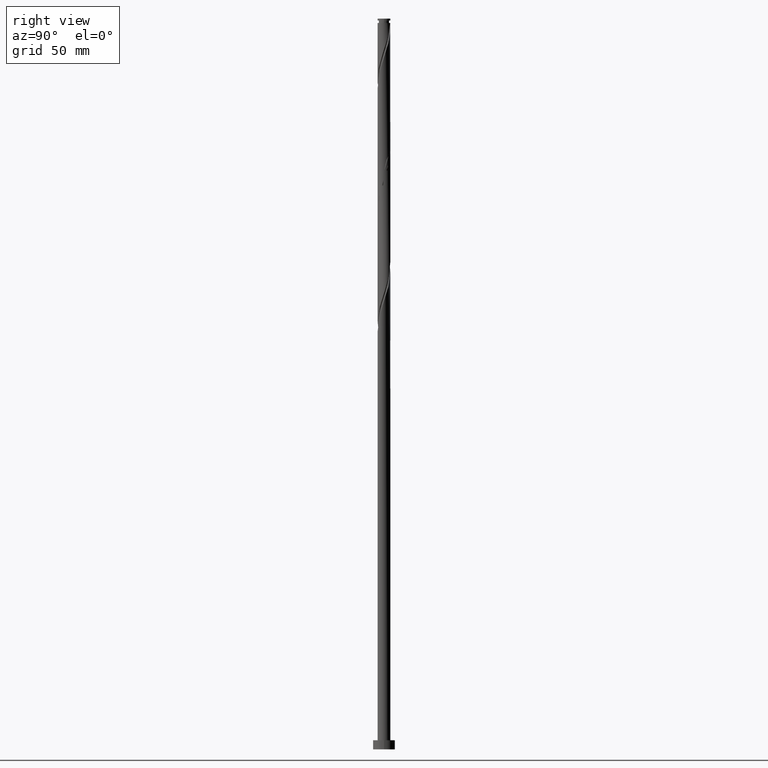
[diagram: clean part render]
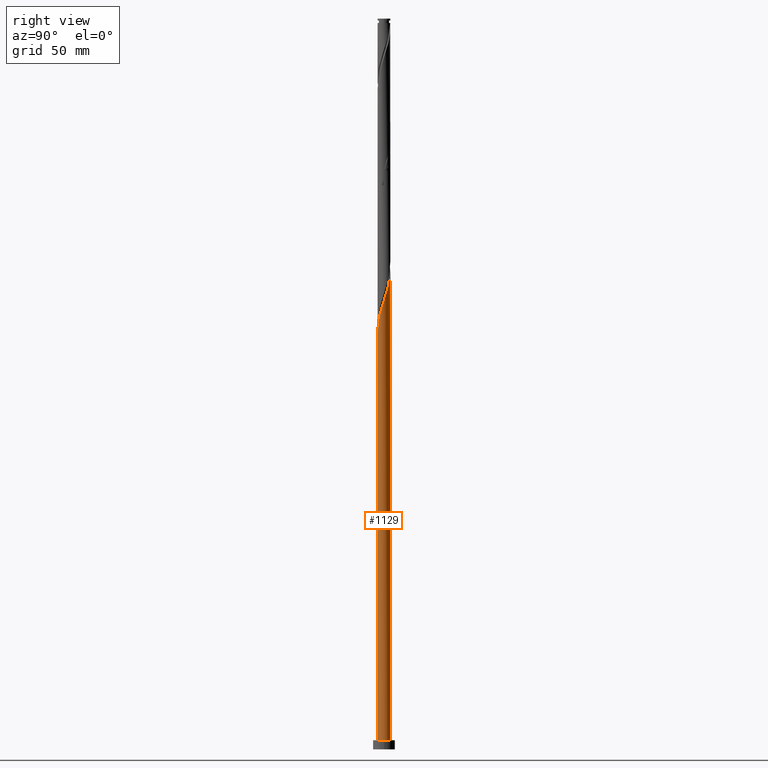
[diagram: same view with one face highlighted and labeled with its STEP entity id]
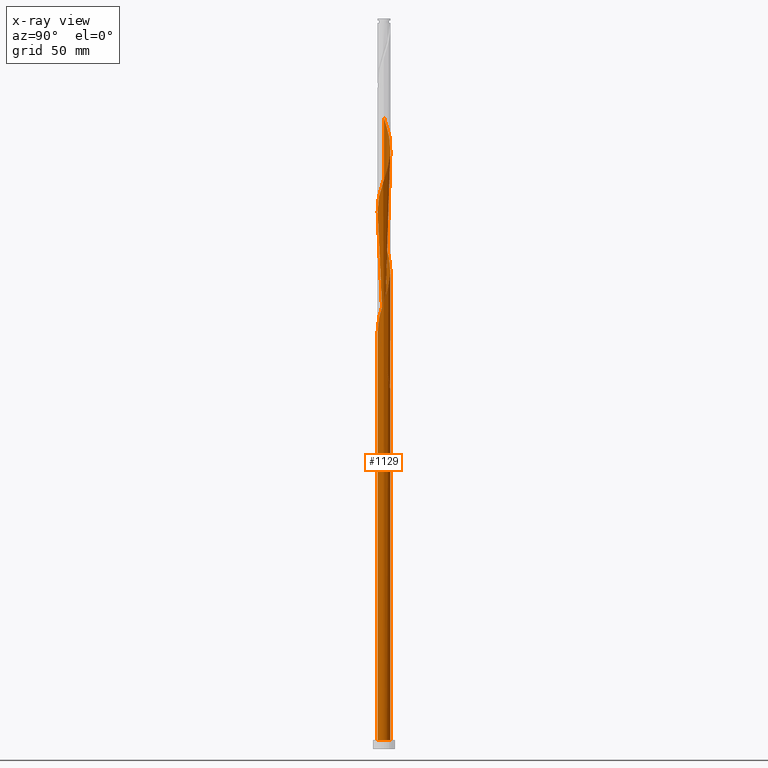
[diagram: x-ray of the same camera — body ghosted, the highlighted face saturated]
A machine part, right view. The second image highlights one B-rep face of the part: STEP entity #1129.
The next image is the same camera in x-ray: the body ghosted, the highlighted face saturated — about 0% of this face is hidden behind the body in this view.
In plain terms, the highlighted cylindrical surface (bore or boss wall) has radius 3.5 mm, axis along (-0, -0, -1).
Its self-contained STEP definition (entity closure, byte-faithful):
#3 = CARTESIAN_POINT ( 'NONE',  ( 2.865871971183461930, 2.042572489069149011, 318.7067946321412819 ) ) ;
#58 = CARTESIAN_POINT ( 'NONE',  ( 0.000000000000000000, 0.000000000000000000, 197.5956835210304519 ) ) ;
#61 = CARTESIAN_POINT ( 'NONE',  ( 3.500000000000000000, 0.000000000000000000, 5.000000000000000000 ) ) ;
#67 = DIRECTION ( 'NONE',  ( 1.000000000000000000, 0.000000000000000000, 0.000000000000000000 ) ) ;
#68 = CARTESIAN_POINT ( 'NONE',  ( 1.117945142577075890, 3.336993135519675580, 258.7067946321413388 ) ) ;
#75 = CARTESIAN_POINT ( 'NONE',  ( -2.579576637429368713, 2.365541031482782497, 204.2623501876969385 ) ) ;
#77 = CARTESIAN_POINT ( 'NONE',  ( 3.435569825739065664, -0.7630101577229290166, 243.1512390765858243 ) ) ;
#85 = CARTESIAN_POINT ( 'NONE',  ( 1.056998732935906293, -3.356795824426772157, 232.0401279654746816 ) ) ;
#93 = CARTESIAN_POINT ( 'NONE',  ( -2.082943168410044787, -2.812711815521447445, 222.0401279654747384 ) ) ;
#95 = AXIS2_PLACEMENT_3D ( 'NONE', #485, #1092, #1502 ) ;
#100 = VERTEX_POINT ( 'NONE', #1818 ) ;
#105 = CARTESIAN_POINT ( 'NONE',  ( 3.477351469971245557, -0.3975257907216231956, 244.2623501876969101 ) ) ;
#117 = CARTESIAN_POINT ( 'NONE',  ( -1.731817870186495245, 3.063679388059370456, 334.2623501876968817 ) ) ;
#128 = CARTESIAN_POINT ( 'NONE',  ( 2.330948256325790613, -2.636665461269001920, 303.1512390765859095 ) ) ;
#139 = CARTESIAN_POINT ( 'NONE',  ( -3.318712737967946858, 1.111820922113507137, 275.3734612988080244 ) ) ;
#149 = CARTESIAN_POINT ( 'NONE',  ( -0.3997154739106256183, -3.496505694008452014, 294.2623501876969385 ) ) ;
#159 = CARTESIAN_POINT ( 'NONE',  ( 2.579576637429368713, -2.365541031482782497, 304.2623501876969954 ) ) ;
#180 = CARTESIAN_POINT ( 'NONE',  ( -3.338406945673213500, 1.051208383281281744, 213.1512390765858243 ) ) ;
#199 = CARTESIAN_POINT ( 'NONE',  ( 0.000000000000000000, 0.000000000000000000, 5.000000000000000000 ) ) ;
#218 = CARTESIAN_POINT ( 'NONE',  ( -3.448893398902866281, -0.7003276742506758801, 214.2623501876969385 ) ) ;
#229 = CARTESIAN_POINT ( 'NONE',  ( -3.500000000000005773, -0.1674539975036204165, 212.6454554697394599 ) ) ;
#234 = CARTESIAN_POINT ( 'NONE',  ( -3.500000000000004441, 0.1994080810625173394, 211.5313156347908432 ) ) ;
#236 = CARTESIAN_POINT ( 'NONE',  ( 0.3359836790133652329, -3.503204175573237489, 229.8179057432525099 ) ) ;
#240 = VECTOR ( 'NONE', #1498, 1000.000000000000000 ) ;
#250 = CARTESIAN_POINT ( 'NONE',  ( -0.7588303082438508929, -3.416749414764063797, 226.4845724099191386 ) ) ;
#254 = EDGE_CURVE ( 'NONE', #1589, #641, #1562, .T. ) ;
#259 = CARTESIAN_POINT ( 'NONE',  ( 0.7588303082438525582, 3.416749414764063797, 326.4845724099190534 ) ) ;
#270 = CARTESIAN_POINT ( 'NONE',  ( -3.435569825739066108, 0.7630101577229269072, 276.4845724099191102 ) ) ;
#281 = CARTESIAN_POINT ( 'NONE',  ( 2.378571092803159370, 2.593785666703844583, 320.9290168543635104 ) ) ;
#284 = AXIS2_PLACEMENT_3D ( 'NONE', #58, #653, #611 ) ;
#291 = CARTESIAN_POINT ( 'NONE',  ( 2.622221531993311761, 2.318179077886496131, 319.8179057432525383 ) ) ;
#300 = CARTESIAN_POINT ( 'NONE',  ( 1.056998732935906293, -3.356795824426772157, 298.7067946321413956 ) ) ;
#320 = FACE_OUTER_BOUND ( 'NONE', #1714, .T. ) ;
#345 = CARTESIAN_POINT ( 'NONE',  ( -3.500000000000004441, -3.333496638808270636E-15, 212.1369069441754505 ) ) ;
#368 = AXIS2_PLACEMENT_3D ( 'NONE', #711, #521, #67 ) ;
#377 = CARTESIAN_POINT ( 'NONE',  ( 3.448893398902866281, 0.7003276742506752139, 247.5956835210302245 ) ) ;
#385 = CARTESIAN_POINT ( 'NONE',  ( -2.378571092803158926, -2.593785666703845472, 220.9290168543635673 ) ) ;
#393 = CARTESIAN_POINT ( 'NONE',  ( 3.201855650196827607, -1.460631686504087368, 240.9290168543635389 ) ) ;
#401 = CARTESIAN_POINT ( 'NONE',  ( -2.579576637429368713, 2.365541031482782497, 270.9290168543636241 ) ) ;
#411 = CARTESIAN_POINT ( 'NONE',  ( -3.201855650196827607, 1.460631686504086924, 340.9290168543636241 ) ) ;
#422 = CARTESIAN_POINT ( 'NONE',  ( -1.452630193297002714, -3.184315549929363609, 290.9290168543635104 ) ) ;
#429 = CARTESIAN_POINT ( 'NONE',  ( -2.622221531993304211, 2.318179077886495687, 208.7067946321414240 ) ) ;
#431 = CARTESIAN_POINT ( 'NONE',  ( -0.7588303082438508929, -3.416749414764063797, 293.1512390765857390 ) ) ;
#432 = EDGE_CURVE ( 'NONE', #1533, #1750, #617, .T. ) ;
#442 = CARTESIAN_POINT ( 'NONE',  ( -0.03186589744862874246, 3.499854934790839422, 199.8179057432524530 ) ) ;
#444 = CARTESIAN_POINT ( 'NONE',  ( -3.448893398902866281, -0.7003276742506758801, 280.9290168543634536 ) ) ;
#473 = CARTESIAN_POINT ( 'NONE',  ( 0.3359836790133661766, 3.503204175573232160, 198.7067946321413388 ) ) ;
#485 = CARTESIAN_POINT ( 'NONE',  ( 0.000000000000000000, 0.000000000000000000, 400.0000000000000000 ) ) ;
#493 = LINE ( 'NONE', #608, #240 ) ;
#516 = CARTESIAN_POINT ( 'NONE',  ( -1.731817870186495245, 3.063679388059370456, 267.5956835210302529 ) ) ;
#521 = DIRECTION ( 'NONE',  ( 0.000000000000000000, 0.000000000000000000, 1.000000000000000000 ) ) ;
#522 = CARTESIAN_POINT ( 'NONE',  ( 3.227920492443572265, 1.402089092311885832, 249.8179057432524246 ) ) ;
#530 = CARTESIAN_POINT ( 'NONE',  ( 2.330948256325790613, -2.636665461269001920, 236.4845724099191671 ) ) ;
#533 = VERTEX_POINT ( 'NONE', #747 ) ;
#538 = CARTESIAN_POINT ( 'NONE',  ( -1.452630193297002714, -3.184315549929363609, 224.2623501876969101 ) ) ;
#551 = CARTESIAN_POINT ( 'NONE',  ( -2.622221531993310428, -2.318179077886497463, 219.8179057432525099 ) ) ;
#560 = CARTESIAN_POINT ( 'NONE',  ( -2.579576637429368713, 2.365541031482782497, 337.5956835210302529 ) ) ;
#568 = CARTESIAN_POINT ( 'NONE',  ( -2.378571092803158926, -2.593785666703845472, 287.5956835210301392 ) ) ;
#580 = CARTESIAN_POINT ( 'NONE',  ( 2.828205018532945036, -2.094416601696563962, 305.3734612988079107 ) ) ;
#587 = ORIENTED_EDGE ( 'NONE', *, *, #1648, .F. ) ;
#588 = CARTESIAN_POINT ( 'NONE',  ( -2.865871971183456601, 2.042572489069147679, 209.8179057432524814 ) ) ;
#590 = CARTESIAN_POINT ( 'NONE',  ( -0.3359836790133633455, 3.503204175573237933, 329.8179057432524814 ) ) ;
#600 = CARTESIAN_POINT ( 'NONE',  ( 1.787315244016932425, 3.031637964339049418, 323.1512390765859095 ) ) ;
#608 = CARTESIAN_POINT ( 'NONE',  ( -3.500000000000000000, 0.000000000000000000, 400.0000000000000000 ) ) ;
#611 = DIRECTION ( 'NONE',  ( 0.000000000000000000, 1.000000000000000000, -6.344131569286608983E-14 ) ) ;
#617 =( BOUNDED_CURVE ( )  B_SPLINE_CURVE ( 2, ( #1876, #1154, #1477, #1166, #180, #1612, #1739, #588, #429, #1048, #1192, #893, #1020, #1780, #1751, #1598, #442, #473, #757 ),
 .UNSPECIFIED., .F., .T. ) 
 B_SPLINE_CURVE_WITH_KNOTS ( ( 3, 2, 2, 2, 2, 2, 2, 2, 2, 3 ),
 ( 0.9295286012773114059, 0.9333333333333333481, 0.9416666666666666519, 0.9499999999999999556, 0.9583333333333333703, 0.9666666666666666741, 0.9749999999999999778, 0.9833333333333332815, 0.9916666666666666963, 1.000000000000000000 ),
 .UNSPECIFIED. ) 
 CURVE ( )  GEOMETRIC_REPRESENTATION_ITEM ( )  RATIONAL_B_SPLINE_CURVE ( ( 0.9066196499552398036, 0.9068171577856525278, 0.9090909090909514711, 0.9041108139711997449, 0.9090909090909514711, 0.9041108139711997449, 0.9090909090909514711, 0.9041108139711997449, 0.9090909090909514711, 0.9041108139711997449, 0.9090909090909514711, 0.9041108139711997449, 0.9090909090909514711, 0.9041108139711997449, 0.9090909090909514711, 0.9041108139711997449, 0.9090909090909514711, 0.9041108139711997449, 0.9090909090909514711 ) ) 
 REPRESENTATION_ITEM ( '' )  );
#628 = DIRECTION ( 'NONE',  ( 1.000000000000000000, 0.000000000000000000, 0.000000000000000000 ) ) ;
#635 = ORIENTED_EDGE ( 'NONE', *, *, #1058, .F. ) ;
#638 = CARTESIAN_POINT ( 'NONE',  ( -1.394408301561200991, 3.210237606243070196, 199.8179057432524814 ) ) ;
#641 = VERTEX_POINT ( 'NONE', #61 ) ;
#653 = DIRECTION ( 'NONE',  ( 8.804251174341664228E-30, -5.947623346206205309E-14, -1.000000000000000000 ) ) ;
#664 = CARTESIAN_POINT ( 'NONE',  ( 2.828205018532945036, -2.094416601696563962, 238.7067946321413672 ) ) ;
#667 = CARTESIAN_POINT ( 'NONE',  ( -3.015030334364886766, 1.777524144100324888, 206.4845724099191671 ) ) ;
#671 = CARTESIAN_POINT ( 'NONE',  ( 3.484013256553146309, 0.3341431252651759776, 246.4845724099191102 ) ) ;
#676 = CARTESIAN_POINT ( 'NONE',  ( 1.394408301561200547, -3.210237606243070196, 233.1512390765858243 ) ) ;
#687 = CARTESIAN_POINT ( 'NONE',  ( -0.6964912059746360962, 3.430000000000005045, 264.2623501876969385 ) ) ;
#691 = ORIENTED_EDGE ( 'NONE', *, *, #1058, .T. ) ;
#695 = CARTESIAN_POINT ( 'NONE',  ( 2.031383063256142485, -2.850172424664186188, 235.3734612988079959 ) ) ;
#701 = AXIS2_PLACEMENT_3D ( 'NONE', #199, #779, #628 ) ;
#705 = CARTESIAN_POINT ( 'NONE',  ( 1.394408301561200547, -3.210237606243070196, 299.8179057432524246 ) ) ;
#711 = CARTESIAN_POINT ( 'NONE',  ( 0.000000000000000000, 0.000000000000000000, 5.000000000000000000 ) ) ;
#716 = CARTESIAN_POINT ( 'NONE',  ( 3.338406945673219273, 1.051208383281280856, 315.3734612988080812 ) ) ;
#729 = CARTESIAN_POINT ( 'NONE',  ( 2.082943168410045232, 2.812711815521446557, 322.0401279654746531 ) ) ;
#739 = CARTESIAN_POINT ( 'NONE',  ( 0.3997154739106261734, 3.496505694008452458, 327.5956835210302529 ) ) ;
#747 = CARTESIAN_POINT ( 'NONE',  ( -3.500000000000005329, -7.025755247712498487E-16, 345.4702402775087648 ) ) ;
#749 = CARTESIAN_POINT ( 'NONE',  ( 3.477351469971245557, -0.3975257907216231956, 310.9290168543635104 ) ) ;
#757 = CARTESIAN_POINT ( 'NONE',  ( 0.6964912059746372064, 3.429999999999998828, 197.5956835210302245 ) ) ;
#769 = CARTESIAN_POINT ( 'NONE',  ( -3.500000000000004885, 0.1994080810625128153, 344.8646489681241292 ) ) ;
#779 = DIRECTION ( 'NONE',  ( 0.000000000000000000, 0.000000000000000000, 1.000000000000000000 ) ) ;
#810 = CARTESIAN_POINT ( 'NONE',  ( 1.731817870186495023, -3.063679388059370456, 234.2623501876968817 ) ) ;
#817 = CARTESIAN_POINT ( 'NONE',  ( -3.338406945673218829, -1.051208383281281966, 215.3734612988080244 ) ) ;
#819 = ORIENTED_EDGE ( 'NONE', *, *, #1754, .F. ) ;
#823 = CARTESIAN_POINT ( 'NONE',  ( 0.03186589744863134455, 3.499854934790845196, 262.0401279654747100 ) ) ;
#832 = CARTESIAN_POINT ( 'NONE',  ( -3.499999999999999556, -4.798441350033463955E-15, 216.3877934312184266 ) ) ;
#840 = CARTESIAN_POINT ( 'NONE',  ( -3.484013256553145865, -0.3341431252651777539, 213.1512390765858527 ) ) ;
#846 = CARTESIAN_POINT ( 'NONE',  ( -0.6964912059746360962, 3.430000000000005045, 330.9290168543635104 ) ) ;
#858 = CARTESIAN_POINT ( 'NONE',  ( -3.046896231813516653, -1.722330790690519864, 284.2623501876969385 ) ) ;
#868 = CARTESIAN_POINT ( 'NONE',  ( -3.519133114203425006, 0.03204142372031940078, 278.7067946321413956 ) ) ;
#879 = CARTESIAN_POINT ( 'NONE',  ( 1.452630193297003158, 3.184315549929363609, 324.2623501876968817 ) ) ;
#887 = CARTESIAN_POINT ( 'NONE',  ( -3.477351469971245557, 0.3975257907216227515, 277.5956835210302529 ) ) ;
#893 = CARTESIAN_POINT ( 'NONE',  ( -1.787315244016926430, 3.031637964339046309, 205.3734612988079959 ) ) ;
#925 = DIRECTION ( 'NONE',  ( -0.000000000000000000, -0.000000000000000000, -1.000000000000000000 ) ) ;
#941 = CARTESIAN_POINT ( 'NONE',  ( -3.318712737967946858, 1.111820922113507137, 208.7067946321413388 ) ) ;
#951 = CARTESIAN_POINT ( 'NONE',  ( -2.828205018532945925, 2.094416601696563962, 205.3734612988080244 ) ) ;
#954 = CARTESIAN_POINT ( 'NONE',  ( -1.394408301561200991, 3.210237606243070196, 266.4845724099191102 ) ) ;
#959 = CARTESIAN_POINT ( 'NONE',  ( -3.500000000000004441, -3.333496638808270636E-15, 212.1369069441754505 ) ) ;
#963 = CARTESIAN_POINT ( 'NONE',  ( 2.082943168410045232, 2.812711815521446557, 255.3734612988079959 ) ) ;
#970 = CARTESIAN_POINT ( 'NONE',  ( 2.622221531993311761, 2.318179077886496131, 253.1512390765858243 ) ) ;
#979 = CARTESIAN_POINT ( 'NONE',  ( 3.046896231813516653, 1.722330790690519198, 250.9290168543635957 ) ) ;
#988 = CARTESIAN_POINT ( 'NONE',  ( 3.318712737967946858, -1.111820922113508248, 308.7067946321413956 ) ) ;
#999 = CARTESIAN_POINT ( 'NONE',  ( -0.03186589744863092821, -3.499854934790845196, 295.3734612988081381 ) ) ;
#1011 = CARTESIAN_POINT ( 'NONE',  ( 3.227920492443572265, 1.402089092311885832, 316.4845724099191671 ) ) ;
#1020 = CARTESIAN_POINT ( 'NONE',  ( -1.452630193296999606, 3.184315549929359612, 204.2623501876969101 ) ) ;
#1024 = CARTESIAN_POINT ( 'NONE',  ( 1.117945142577075890, 3.336993135519675580, 325.3734612988080244 ) ) ;
#1034 = CARTESIAN_POINT ( 'NONE',  ( -1.117945142577075446, -3.336993135519676912, 292.0401279654747668 ) ) ;
#1048 = CARTESIAN_POINT ( 'NONE',  ( -2.378571092803154929, 2.593785666703841919, 207.5956835210302813 ) ) ;
#1052 = ORIENTED_EDGE ( 'NONE', *, *, #1552, .F. ) ;
#1058 = EDGE_CURVE ( 'NONE', #1838, #1589, #1513, .T. ) ;
#1068 = CARTESIAN_POINT ( 'NONE',  ( -1.731817870186495245, 3.063679388059370456, 200.9290168543635673 ) ) ;
#1078 = CARTESIAN_POINT ( 'NONE',  ( -3.435569825739066108, 0.7630101577229269072, 209.8179057432524814 ) ) ;
#1092 = DIRECTION ( 'NONE',  ( -0.000000000000000000, -0.000000000000000000, -1.000000000000000000 ) ) ;
#1098 = CARTESIAN_POINT ( 'NONE',  ( -1.117945142577075446, -3.336993135519676912, 225.3734612988079675 ) ) ;
#1104 = CARTESIAN_POINT ( 'NONE',  ( 0.6964912059746365403, -3.430000000000005045, 230.9290168543635673 ) ) ;
#1112 = CARTESIAN_POINT ( 'NONE',  ( 2.579576637429368713, -2.365541031482782497, 237.5956835210302529 ) ) ;
#1120 = CARTESIAN_POINT ( 'NONE',  ( 3.015030334364886766, -1.777524144100325554, 239.8179057432524814 ) ) ;
#1123 = ORIENTED_EDGE ( 'NONE', *, *, #1468, .T. ) ;
#1126 = CARTESIAN_POINT ( 'NONE',  ( 3.519133114203425450, -0.03204142372032056651, 245.3734612988080244 ) ) ;
#1129 = ADVANCED_FACE ( 'NONE', ( #320 ), #1369, .T. ) ;
#1137 = CARTESIAN_POINT ( 'NONE',  ( -2.330948256325791501, 2.636665461269001476, 336.4845724099189965 ) ) ;
#1146 = CARTESIAN_POINT ( 'NONE',  ( -3.484013256553145865, -0.3341431252651777539, 279.8179057432524246 ) ) ;
#1154 = CARTESIAN_POINT ( 'NONE',  ( -3.499999999999999556, 0.1674539975036217487, 215.8792449056543319 ) ) ;
#1157 = CARTESIAN_POINT ( 'NONE',  ( 3.519133114203425450, -0.03204142372032056651, 312.0401279654745963 ) ) ;
#1166 = CARTESIAN_POINT ( 'NONE',  ( -3.448893398902860064, 0.7003276742506756580, 214.2623501876969385 ) ) ;
#1168 = CARTESIAN_POINT ( 'NONE',  ( -3.015030334364886766, 1.777524144100324888, 273.1512390765857390 ) ) ;
#1176 = CARTESIAN_POINT ( 'NONE',  ( 0.6964912059746365403, -3.430000000000005045, 297.5956835210301961 ) ) ;
#1192 = CARTESIAN_POINT ( 'NONE',  ( -2.082943168410040791, 2.812711815521443448, 206.4845724099190818 ) ) ;
#1194 = CARTESIAN_POINT ( 'NONE',  ( -3.500000000000000000, 0.000000000000000000, 5.000000000000000000 ) ) ;
#1195 = VECTOR ( 'NONE', #925, 1000.000000000000000 ) ;
#1203 = CARTESIAN_POINT ( 'NONE',  ( -3.435569825739066108, 0.7630101577229269072, 343.1512390765857958 ) ) ;
#1241 = CARTESIAN_POINT ( 'NONE',  ( -3.201855650196827607, 1.460631686504086924, 207.5956835210302813 ) ) ;
#1244 = CARTESIAN_POINT ( 'NONE',  ( -3.227920492443571376, -1.402089092311887830, 216.4845724099191386 ) ) ;
#1248 = CARTESIAN_POINT ( 'NONE',  ( 2.378571092803159370, 2.593785666703844583, 254.2623501876969385 ) ) ;
#1264 = CARTESIAN_POINT ( 'NONE',  ( 0.7588303082438525582, 3.416749414764063797, 259.8179057432524814 ) ) ;
#1270 = ORIENTED_EDGE ( 'NONE', *, *, #432, .F. ) ;
#1272 = CARTESIAN_POINT ( 'NONE',  ( 3.015030334364886766, -1.777524144100325554, 306.4845724099190534 ) ) ;
#1287 = CARTESIAN_POINT ( 'NONE',  ( -3.318712737967946858, 1.111820922113507137, 342.0401279654746531 ) ) ;
#1297 = CARTESIAN_POINT ( 'NONE',  ( -1.056998732935907181, 3.356795824426770825, 332.0401279654746531 ) ) ;
#1310 = CARTESIAN_POINT ( 'NONE',  ( 0.03186589744863134455, 3.499854934790845196, 328.7067946321413388 ) ) ;
#1320 = CARTESIAN_POINT ( 'NONE',  ( 3.448893398902866281, 0.7003276742506752139, 314.2623501876968817 ) ) ;
#1356 = CARTESIAN_POINT ( 'NONE',  ( -3.500000000000005329, -7.025755247712498487E-16, 345.4702402775087648 ) ) ;
#1369 = CYLINDRICAL_SURFACE ( 'NONE', #95, 3.500000000000000000 ) ;
#1377 = CARTESIAN_POINT ( 'NONE',  ( 1.452630193297003158, 3.184315549929363609, 257.5956835210302529 ) ) ;
#1384 = CARTESIAN_POINT ( 'NONE',  ( -1.056998732935907181, 3.356795824426770825, 198.7067946321413672 ) ) ;
#1407 = CARTESIAN_POINT ( 'NONE',  ( -3.046896231813516653, -1.722330790690519864, 217.5956835210303097 ) ) ;
#1416 = CARTESIAN_POINT ( 'NONE',  ( -1.394408301561200991, 3.210237606243070196, 333.1512390765859095 ) ) ;
#1419 = CIRCLE ( 'NONE', #701, 3.500000000000000000 ) ;
#1421 = ORIENTED_EDGE ( 'NONE', *, *, #1690, .T. ) ;
#1426 = CARTESIAN_POINT ( 'NONE',  ( 3.201855650196827607, -1.460631686504087368, 307.5956835210303097 ) ) ;
#1437 = CARTESIAN_POINT ( 'NONE',  ( -2.622221531993310428, -2.318179077886497463, 286.4845724099192239 ) ) ;
#1448 = CARTESIAN_POINT ( 'NONE',  ( -2.828205018532945925, 2.094416601696563962, 272.0401279654747100 ) ) ;
#1458 = CARTESIAN_POINT ( 'NONE',  ( 2.031383063256142485, -2.850172424664186188, 302.0401279654747100 ) ) ;
#1468 = EDGE_CURVE ( 'NONE', #100, #1750, #1781, .T. ) ;
#1477 = CARTESIAN_POINT ( 'NONE',  ( -3.484013256553140536, 0.3341431252651790307, 215.3734612988079959 ) ) ;
#1498 = DIRECTION ( 'NONE',  ( -0.000000000000000000, -0.000000000000000000, -1.000000000000000000 ) ) ;
#1502 = DIRECTION ( 'NONE',  ( -1.000000000000000000, 0.000000000000000000, 0.000000000000000000 ) ) ;
#1509 = CARTESIAN_POINT ( 'NONE',  ( -0.6964912059746360962, 3.430000000000005045, 197.5956835210302529 ) ) ;
#1513 = LINE ( 'NONE', #1659, #1195 ) ;
#1522 = CARTESIAN_POINT ( 'NONE',  ( -3.500000000000004441, -3.333496638808270636E-15, 212.1369069441754505 ) ) ;
#1531 = CARTESIAN_POINT ( 'NONE',  ( -2.031383063256143373, 2.850172424664185744, 268.7067946321413956 ) ) ;
#1533 = VERTEX_POINT ( 'NONE', #832 ) ;
#1535 = ORIENTED_EDGE ( 'NONE', *, *, #254, .T. ) ;
#1539 = CARTESIAN_POINT ( 'NONE',  ( -1.787315244016930205, -3.031637964339050306, 223.1512390765857674 ) ) ;
#1549 = CARTESIAN_POINT ( 'NONE',  ( 0.3997154739106261734, 3.496505694008452458, 260.9290168543635673 ) ) ;
#1552 = EDGE_CURVE ( 'NONE', #1838, #533, #1666, .T. ) ;
#1559 = CARTESIAN_POINT ( 'NONE',  ( -1.056998732935907181, 3.356795824426770825, 265.3734612988080812 ) ) ;
#1562 = CIRCLE ( 'NONE', #368, 3.500000000000000000 ) ;
#1565 = CARTESIAN_POINT ( 'NONE',  ( 3.484013256553146309, 0.3341431252651759776, 313.1512390765859095 ) ) ;
#1572 = CARTESIAN_POINT ( 'NONE',  ( 3.046896231813516653, 1.722330790690519198, 317.5956835210301392 ) ) ;
#1582 = CARTESIAN_POINT ( 'NONE',  ( -3.338406945673218829, -1.051208383281281966, 282.0401279654747100 ) ) ;
#1589 = VERTEX_POINT ( 'NONE', #1194 ) ;
#1591 = CARTESIAN_POINT ( 'NONE',  ( 0.3359836790133652329, -3.503204175573237489, 296.4845724099191671 ) ) ;
#1598 = CARTESIAN_POINT ( 'NONE',  ( -0.3997154739106241750, 3.496505694008446241, 200.9290168543635957 ) ) ;
#1600 = CARTESIAN_POINT ( 'NONE',  ( -2.865871971183461930, -2.042572489069150343, 285.3734612988080244 ) ) ;
#1612 = CARTESIAN_POINT ( 'NONE',  ( -3.227920492443566047, 1.402089092311887386, 212.0401279654746531 ) ) ;
#1634 = CARTESIAN_POINT ( 'NONE',  ( -3.477351469971245557, 0.3975257907216227515, 344.2623501876969954 ) ) ;
#1646 = CARTESIAN_POINT ( 'NONE',  ( -2.031383063256143373, 2.850172424664185744, 202.0401279654747100 ) ) ;
#1648 = EDGE_CURVE ( 'NONE', #533, #1533, #493, .T. ) ;
#1656 = CARTESIAN_POINT ( 'NONE',  ( -2.330948256325791501, 2.636665461269001476, 203.1512390765857390 ) ) ;
#1659 = CARTESIAN_POINT ( 'NONE',  ( -3.500000000000000000, 0.000000000000000000, 400.0000000000000000 ) ) ;
#1666 =( BOUNDED_CURVE ( )  B_SPLINE_CURVE ( 2, ( #1522, #229, #840, #218, #817, #1244, #1407, #1835, #551, #385, #93, #1539, #538, #1098, #250, #1684, #1689, #236, #1104, #85, #676, #810, #695, #530, #1112, #664, #1120, #393, #1699, #77, #105, #1126, #671, #377, #1827, #522, #979, #1819, #970, #1248, #963, #1677, #1377, #68, #1264, #1549, #823, #1708, #687, #1559, #954, #516, #1531, #1848, #401, #1448, #1168, #1752, #139, #270, #887, #868, #1146, #444, #1582, #1741, #858, #1600, #1437, #568, #1868, #1730, #422, #1034, #431, #149, #999, #1591, #1176, #300, #705, #1762, #1458, #128, #159, #580, #1272, #1426, #988, #1889, #749, #1157, #1565, #1320, #716, #1011, #1572, #3, #291, #281, #729, #600, #879, #1024, #259, #739, #1310, #590, #846, #1297, #1416, #117, #1857, #1137, #560, #1878, #1717, #411, #1287, #1203, #1634, #769, #1356 ),
 .UNSPECIFIED., .F., .T. ) 
 B_SPLINE_CURVE_WITH_KNOTS ( ( 3, 2, 2, 2, 2, 2, 2, 2, 2, 2, 2, 2, 2, 2, 2, 2, 2, 2, 2, 2, 2, 2, 2, 2, 2, 2, 2, 2, 2, 2, 2, 2, 2, 2, 2, 2, 2, 2, 2, 2, 2, 2, 2, 2, 2, 2, 2, 2, 2, 2, 2, 2, 2, 2, 2, 2, 2, 2, 2, 2, 2, 3 ),
 ( 0.05452860127731141288, 0.05833333333333334814, 0.06666666666666665186, 0.07499999999999995559, 0.08333333333333337034, 0.09166666666666667407, 0.09999999999999997780, 0.1083333333333332815, 0.1166666666666666963, 0.1250000000000000000, 0.1333333333333333037, 0.1416666666666667185, 0.1500000000000000222, 0.1583333333333333259, 0.1666666666666666297, 0.1750000000000000444, 0.1833333333333333481, 0.1916666666666666519, 0.1999999999999999556, 0.2083333333333333703, 0.2166666666666666741, 0.2249999999999999778, 0.2333333333333332815, 0.2416666666666666963, 0.2500000000000000000, 0.2583333333333333037, 0.2666666666666667185, 0.2750000000000000222, 0.2833333333333333259, 0.2916666666666666297, 0.3000000000000000444, 0.3083333333333333481, 0.3166666666666666519, 0.3249999999999999556, 0.3333333333333333703, 0.3416666666666666741, 0.3499999999999999778, 0.3583333333333332815, 0.3666666666666666963, 0.3750000000000000000, 0.3833333333333333037, 0.3916666666666667185, 0.4000000000000000222, 0.4083333333333333259, 0.4166666666666666297, 0.4250000000000000444, 0.4333333333333333481, 0.4416666666666666519, 0.4499999999999999556, 0.4583333333333333703, 0.4666666666666666741, 0.4749999999999999778, 0.4833333333333332815, 0.4916666666666666963, 0.5000000000000000000, 0.5083333333333333037, 0.5166666666666666075, 0.5250000000000000222, 0.5333333333333333259, 0.5416666666666667407, 0.5500000000000000444, 0.5545286012773115170 ),
 .UNSPECIFIED. ) 
 CURVE ( )  GEOMETRIC_REPRESENTATION_ITEM ( )  RATIONAL_B_SPLINE_CURVE ( ( 0.9066196499552461319, 0.9068171577856588561, 0.9090909090909577994, 0.9041108139712060732, 0.9090909090909577994, 0.9041108139712060732, 0.9090909090909577994, 0.9041108139712060732, 0.9090909090909577994, 0.9041108139712060732, 0.9090909090909577994, 0.9041108139712060732, 0.9090909090909577994, 0.9041108139712060732, 0.9090909090909577994, 0.9041108139712060732, 0.9090909090909577994, 0.9041108139712060732, 0.9090909090909577994, 0.9041108139712060732, 0.9090909090909577994, 0.9041108139712060732, 0.9090909090909577994, 0.9041108139712060732, 0.9090909090909577994, 0.9041108139712060732, 0.9090909090909577994, 0.9041108139712060732, 0.9090909090909577994, 0.9041108139712060732, 0.9090909090909577994, 0.9041108139712060732, 0.9090909090909577994, 0.9041108139712060732, 0.9090909090909577994, 0.9041108139712060732, 0.9090909090909577994, 0.9041108139712060732, 0.9090909090909577994, 0.9041108139712060732, 0.9090909090909577994, 0.9041108139712060732, 0.9090909090909577994, 0.9041108139712060732, 0.9090909090909577994, 0.9041108139712060732, 0.9090909090909577994, 0.9041108139712060732, 0.9090909090909577994, 0.9041108139712060732, 0.9090909090909577994, 0.9041108139712060732, 0.9090909090909577994, 0.9041108139712060732, 0.9090909090909577994, 0.9041108139712060732, 0.9090909090909577994, 0.9041108139712060732, 0.9090909090909577994, 0.9041108139712060732, 0.9090909090909577994, 0.9041108139712060732, 0.9090909090909577994, 0.9041108139712060732, 0.9090909090909577994, 0.9041108139712060732, 0.9090909090909577994, 0.9041108139712060732, 0.9090909090909577994, 0.9041108139712060732, 0.9090909090909577994, 0.9041108139712060732, 0.9090909090909577994, 0.9041108139712060732, 0.9090909090909577994, 0.9041108139712060732, 0.9090909090909577994, 0.9041108139712060732, 0.9090909090909577994, 0.9041108139712060732, 0.9090909090909577994, 0.9041108139712060732, 0.9090909090909577994, 0.9041108139712060732, 0.9090909090909577994, 0.9041108139712060732, 0.9090909090909577994, 0.9041108139712060732, 0.9090909090909577994, 0.9041108139712060732, 0.9090909090909577994, 0.9041108139712060732, 0.9090909090909577994, 0.9041108139712060732, 0.9090909090909577994, 0.9041108139712060732, 0.9090909090909577994, 0.9041108139712060732, 0.9090909090909577994, 0.9041108139712060732, 0.9090909090909577994, 0.9041108139712060732, 0.9090909090909577994, 0.9041108139712060732, 0.9090909090909577994, 0.9041108139712060732, 0.9090909090909577994, 0.9041108139712060732, 0.9090909090909577994, 0.9041108139712060732, 0.9090909090909577994, 0.9041108139712060732, 0.9090909090909577994, 0.9041108139712060732, 0.9090909090909577994, 0.9041108139712060732, 0.9090909090909577994, 0.9041108139712060732, 0.9090909090909577994, 0.9041108139712060732, 0.9090909090909577994, 0.9063845652765050165, 0.9066196499552461319 ) ) 
 REPRESENTATION_ITEM ( '' )  );
#1675 =( BOUNDED_CURVE ( )  B_SPLINE_CURVE ( 2, ( #1509, #1384, #638, #1068, #1646, #1656, #75, #951, #667, #1241, #941, #1078, #1681, #234, #959 ),
 .UNSPECIFIED., .F., .T. ) 
 B_SPLINE_CURVE_WITH_KNOTS ( ( 3, 2, 2, 2, 2, 2, 2, 3 ),
 ( 0.000000000000000000, 0.008333333333333303727, 0.01666666666666671848, 0.02500000000000002220, 0.03333333333333332593, 0.04166666666666662966, 0.05000000000000004441, 0.05452860127731141288 ),
 .UNSPECIFIED. ) 
 CURVE ( )  GEOMETRIC_REPRESENTATION_ITEM ( )  RATIONAL_B_SPLINE_CURVE ( ( 0.9090909090909577994, 0.9041108139712060732, 0.9090909090909577994, 0.9041108139712060732, 0.9090909090909577994, 0.9041108139712060732, 0.9090909090909577994, 0.9041108139712060732, 0.9090909090909577994, 0.9041108139712060732, 0.9090909090909577994, 0.9041108139712060732, 0.9090909090909577994, 0.9063845652765050165, 0.9066196499552461319 ) ) 
 REPRESENTATION_ITEM ( '' )  );
#1677 = CARTESIAN_POINT ( 'NONE',  ( 1.787315244016932425, 3.031637964339049418, 256.4845724099191102 ) ) ;
#1681 = CARTESIAN_POINT ( 'NONE',  ( -3.477351469971245557, 0.3975257907216227515, 210.9290168543635389 ) ) ;
#1684 = CARTESIAN_POINT ( 'NONE',  ( -0.3997154739106256183, -3.496505694008452014, 227.5956835210302813 ) ) ;
#1689 = CARTESIAN_POINT ( 'NONE',  ( -0.03186589744863092821, -3.499854934790845196, 228.7067946321413672 ) ) ;
#1690 = EDGE_CURVE ( 'NONE', #641, #1589, #1419, .T. ) ;
#1699 = CARTESIAN_POINT ( 'NONE',  ( 3.318712737967946858, -1.111820922113508248, 242.0401279654746816 ) ) ;
#1708 = CARTESIAN_POINT ( 'NONE',  ( -0.3359836790133633455, 3.503204175573237933, 263.1512390765857390 ) ) ;
#1714 = EDGE_LOOP ( 'NONE', ( #587, #1052, #691, #1535, #1421, #635, #819, #1123, #1270 ) ) ;
#1717 = CARTESIAN_POINT ( 'NONE',  ( -3.015030334364886766, 1.777524144100324888, 339.8179057432524814 ) ) ;
#1730 = CARTESIAN_POINT ( 'NONE',  ( -1.787315244016930205, -3.031637964339050306, 289.8179057432524814 ) ) ;
#1739 = CARTESIAN_POINT ( 'NONE',  ( -3.046896231813510880, 1.722330790690516977, 210.9290168543635673 ) ) ;
#1741 = CARTESIAN_POINT ( 'NONE',  ( -3.227920492443571376, -1.402089092311887830, 283.1512390765857390 ) ) ;
#1750 = VERTEX_POINT ( 'NONE', #1791 ) ;
#1751 = CARTESIAN_POINT ( 'NONE',  ( -0.7588303082438477842, 3.416749414764059356, 202.0401279654747100 ) ) ;
#1752 = CARTESIAN_POINT ( 'NONE',  ( -3.201855650196827607, 1.460631686504086924, 274.2623501876968248 ) ) ;
#1754 = EDGE_CURVE ( 'NONE', #100, #1838, #1675, .T. ) ;
#1762 = CARTESIAN_POINT ( 'NONE',  ( 1.731817870186495023, -3.063679388059370456, 300.9290168543635104 ) ) ;
#1780 = CARTESIAN_POINT ( 'NONE',  ( -1.117945142577072115, 3.336993135519672471, 203.1512390765857674 ) ) ;
#1781 = CIRCLE ( 'NONE', #284, 3.500000000000000000 ) ;
#1791 = CARTESIAN_POINT ( 'NONE',  ( 0.6964912059746372064, 3.429999999999998828, 197.5956835210302529 ) ) ;
#1818 = CARTESIAN_POINT ( 'NONE',  ( -0.6964912059746360962, 3.430000000000005045, 197.5956835210302529 ) ) ;
#1819 = CARTESIAN_POINT ( 'NONE',  ( 2.865871971183461930, 2.042572489069149011, 252.0401279654747100 ) ) ;
#1827 = CARTESIAN_POINT ( 'NONE',  ( 3.338406945673219273, 1.051208383281280856, 248.7067946321413672 ) ) ;
#1835 = CARTESIAN_POINT ( 'NONE',  ( -2.865871971183461930, -2.042572489069150343, 218.7067946321413388 ) ) ;
#1838 = VERTEX_POINT ( 'NONE', #345 ) ;
#1848 = CARTESIAN_POINT ( 'NONE',  ( -2.330948256325791501, 2.636665461269001476, 269.8179057432524814 ) ) ;
#1857 = CARTESIAN_POINT ( 'NONE',  ( -2.031383063256143373, 2.850172424664185744, 335.3734612988080244 ) ) ;
#1868 = CARTESIAN_POINT ( 'NONE',  ( -2.082943168410044787, -2.812711815521447445, 288.7067946321412819 ) ) ;
#1876 = CARTESIAN_POINT ( 'NONE',  ( -3.499999999999999556, -4.798441350033463955E-15, 216.3877934312184550 ) ) ;
#1878 = CARTESIAN_POINT ( 'NONE',  ( -2.828205018532945925, 2.094416601696563962, 338.7067946321413956 ) ) ;
#1889 = CARTESIAN_POINT ( 'NONE',  ( 3.435569825739065664, -0.7630101577229290166, 309.8179057432525383 ) ) ;